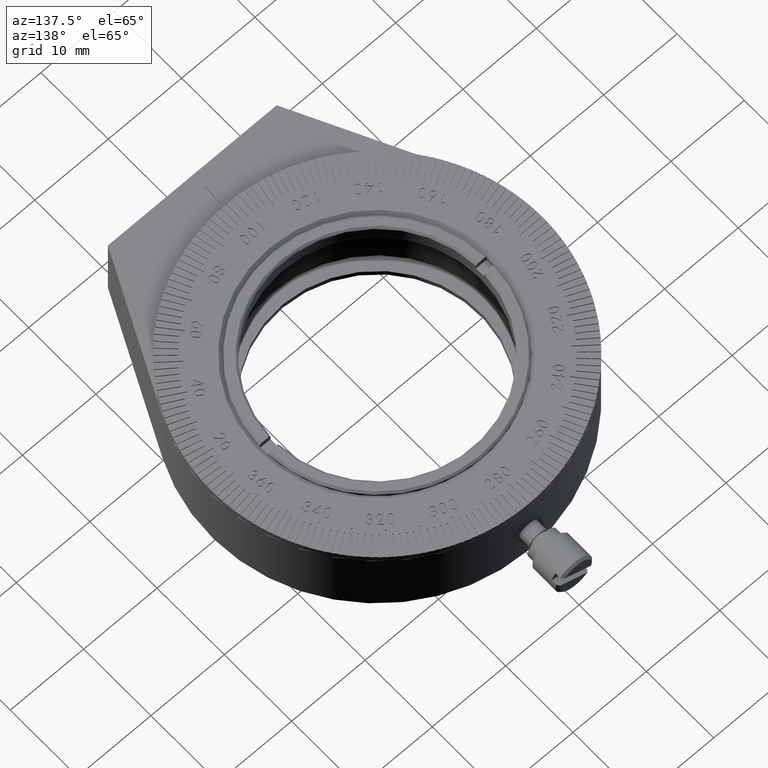
[diagram: clean part render]
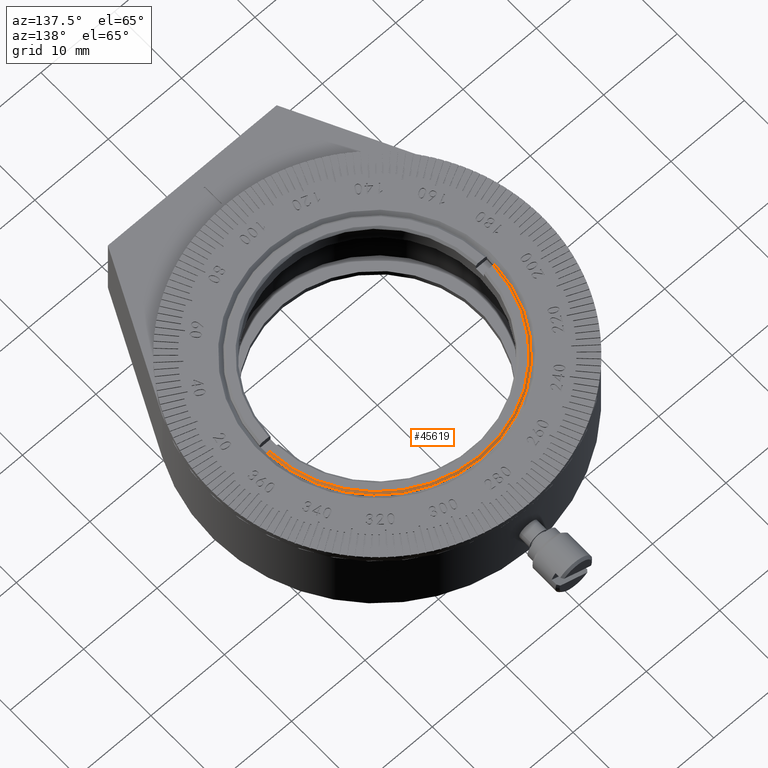
[diagram: same view with one face highlighted and labeled with its STEP entity id]
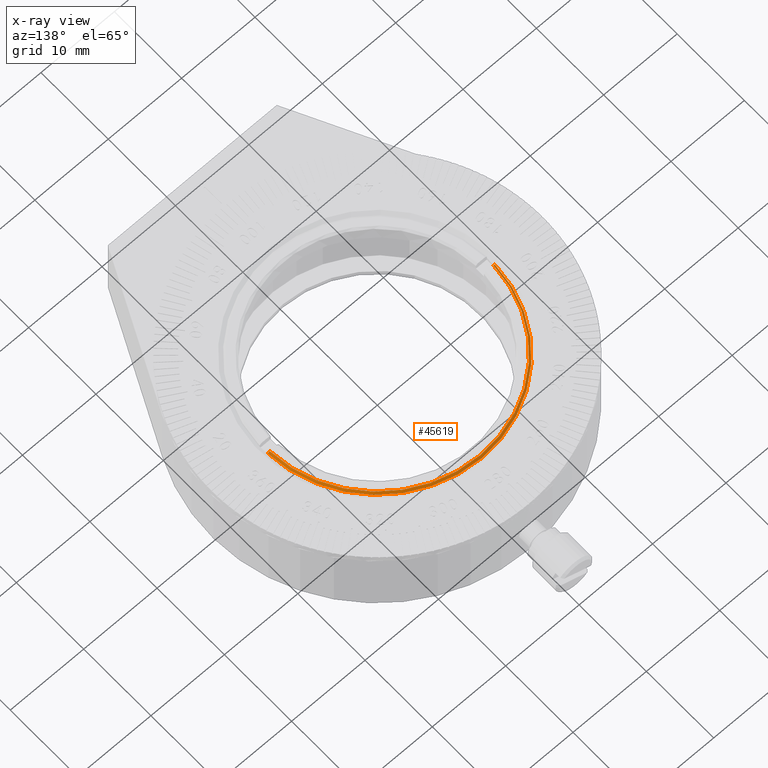
[diagram: x-ray of the same camera — body ghosted, the highlighted face saturated]
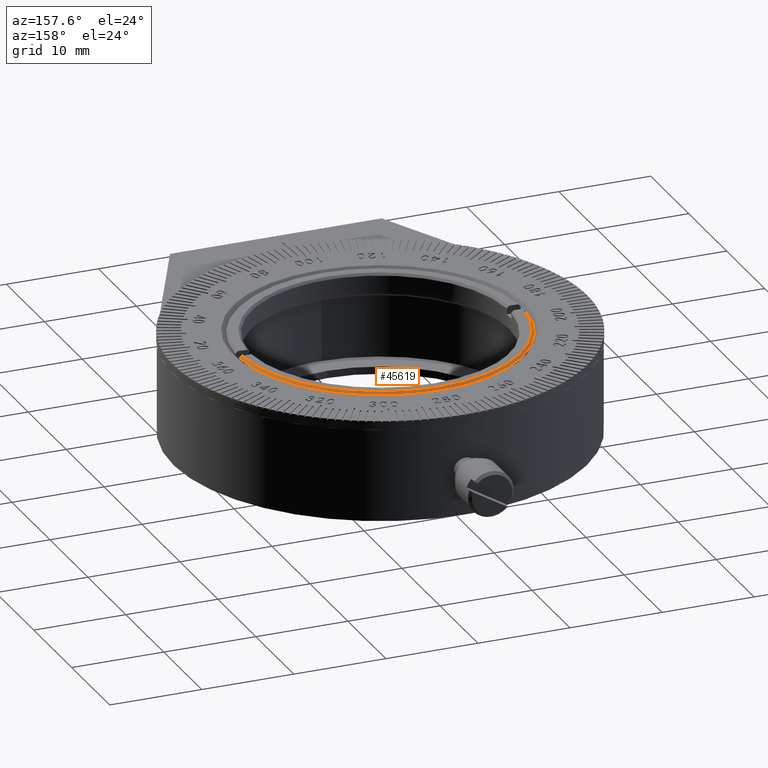
[diagram: same view with one face highlighted and labeled with its STEP entity id]
A machine part, auxiliary view. The second image highlights one B-rep face of the part: STEP entity #45619.
The next image is the same camera in x-ray: the body ghosted, the highlighted face saturated — about 0% of this face is hidden behind the body in this view.
A second angle (auxiliary view) of the same face is appended — the face is thin or edge-on in the first view.
In plain terms, the highlighted conical surface has half-angle 45 deg.
Its self-contained STEP definition (entity closure, byte-faithful):
#4300 = CONICAL_SURFACE ( 'NONE', #5288, 15.50000000000000000, 0.7853981633974480570 ) ;
#5288 = AXIS2_PLACEMENT_3D ( 'NONE', #31136, #7147, #55704 ) ;
#6651 = DIRECTION ( 'NONE',  ( -1.000000000000000000, 0.000000000000000000, 0.000000000000000000 ) ) ;
#7147 = DIRECTION ( 'NONE',  ( 0.000000000000000000, 0.000000000000000000, -1.000000000000000000 ) ) ;
#7580 = B_SPLINE_CURVE_WITH_KNOTS ( 'NONE', 3,
 ( #48277, #9467, #43223, #34669 ),
 .UNSPECIFIED., .F., .F.,
 ( 4, 4 ),
 ( 1.616169294412105078E-15, 0.0003536881860230027801 ),
 .UNSPECIFIED. ) ;
#9467 = CARTESIAN_POINT ( 'NONE',  ( 15.32158953534284329, 0.6000000000000000888, -0.08333281198830536085 ) ) ;
#14821 = ORIENTED_EDGE ( 'NONE', *, *, #32615, .T. ) ;
#15965 = CARTESIAN_POINT ( 'NONE',  ( -15.23819214998941618, 0.6000000000000000888, 3.578848098443472705E-14 ) ) ;
#16836 = AXIS2_PLACEMENT_3D ( 'NONE', #21391, #40629, #49490 ) ;
#20543 = CARTESIAN_POINT ( 'NONE',  ( 0.000000000000000000, 0.000000000000000000, 0.000000000000000000 ) ) ;
#20762 = CIRCLE ( 'NONE', #57021, 15.25000000000000533 ) ;
#21391 = CARTESIAN_POINT ( 'NONE',  ( 0.000000000000000000, 0.000000000000000000, -0.2499999999999950040 ) ) ;
#22266 = EDGE_CURVE ( 'NONE', #53976, #23341, #45990, .T. ) ;
#22452 = VERTEX_POINT ( 'NONE', #40533 ) ;
#23341 = VERTEX_POINT ( 'NONE', #53233 ) ;
#24930 = ORIENTED_EDGE ( 'NONE', *, *, #25055, .F. ) ;
#25055 = EDGE_CURVE ( 'NONE', #53976, #32000, #47074, .T. ) ;
#25113 = CARTESIAN_POINT ( 'NONE',  ( -15.32158953534126766, 0.6000000000000000888, -0.08333281198673365975 ) ) ;
#30764 = ORIENTED_EDGE ( 'NONE', *, *, #22266, .T. ) ;
#31136 = CARTESIAN_POINT ( 'NONE',  ( 0.000000000000000000, 0.000000000000000000, -0.2499999999999951150 ) ) ;
#31274 = DIRECTION ( 'NONE',  ( 0.000000000000000000, 0.000000000000000000, -1.000000000000000000 ) ) ;
#31720 = CARTESIAN_POINT ( 'NONE',  ( 15.48838274320647379, 0.6000000000000000888, -0.2500000000004889977 ) ) ;
#32000 = VERTEX_POINT ( 'NONE', #31720 ) ;
#32615 = EDGE_CURVE ( 'NONE', #22452, #32000, #7580, .T. ) ;
#34669 = CARTESIAN_POINT ( 'NONE',  ( 15.48838274320647379, 0.6000000000000000888, -0.2500000000004889977 ) ) ;
#38701 = EDGE_LOOP ( 'NONE', ( #30764, #48404, #14821, #24930 ) ) ;
#40533 = CARTESIAN_POINT ( 'NONE',  ( 15.23819214999059746, 0.6000000000000000888, -1.142868310374423698E-12 ) ) ;
#40629 = DIRECTION ( 'NONE',  ( -0.000000000000000000, -0.000000000000000000, -1.000000000000000000 ) ) ;
#43223 = CARTESIAN_POINT ( 'NONE',  ( 15.40498639134194647, 0.6000000000000000888, -0.1666661537395604520 ) ) ;
#45619 = ADVANCED_FACE ( 'NONE', ( #59797 ), #4300, .T. ) ;
#45990 = B_SPLINE_CURVE_WITH_KNOTS ( 'NONE', 3,
 ( #48769, #48477, #25113, #15965 ),
 .UNSPECIFIED., .F., .F.,
 ( 4, 4 ),
 ( 4.636679292050523196E-16, 0.0003536881860260549719 ),
 .UNSPECIFIED. ) ;
#47074 = CIRCLE ( 'NONE', #16836, 15.50000000000000000 ) ;
#48277 = CARTESIAN_POINT ( 'NONE',  ( 15.23819214999059746, 0.6000000000000000888, -1.142868310374423698E-12 ) ) ;
#48404 = ORIENTED_EDGE ( 'NONE', *, *, #53345, .T. ) ;
#48477 = CARTESIAN_POINT ( 'NONE',  ( -15.40498639134115777, 0.6000000000000000888, -0.1666661537387740810 ) ) ;
#48769 = CARTESIAN_POINT ( 'NONE',  ( -15.48838274320597996, 0.6000000000000000888, -0.2500000000013109513 ) ) ;
#49490 = DIRECTION ( 'NONE',  ( 1.000000000000000000, 0.000000000000000000, 0.000000000000000000 ) ) ;
#53233 = CARTESIAN_POINT ( 'NONE',  ( -15.23819214998941618, 0.6000000000000000888, 3.578848098443472705E-14 ) ) ;
#53345 = EDGE_CURVE ( 'NONE', #23341, #22452, #20762, .T. ) ;
#53976 = VERTEX_POINT ( 'NONE', #56362 ) ;
#55704 = DIRECTION ( 'NONE',  ( -1.000000000000000000, 0.000000000000000000, 0.000000000000000000 ) ) ;
#56362 = CARTESIAN_POINT ( 'NONE',  ( -15.48838274320597996, 0.6000000000000000888, -0.2500000000013109513 ) ) ;
#57021 = AXIS2_PLACEMENT_3D ( 'NONE', #20543, #31274, #6651 ) ;
#59797 = FACE_OUTER_BOUND ( 'NONE', #38701, .T. ) ;